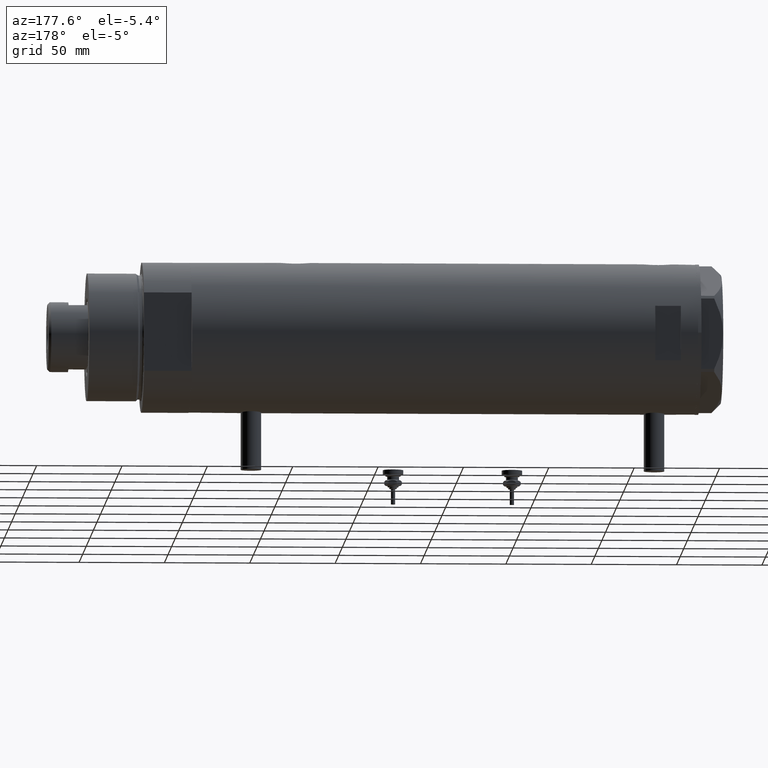
[diagram: clean part render]
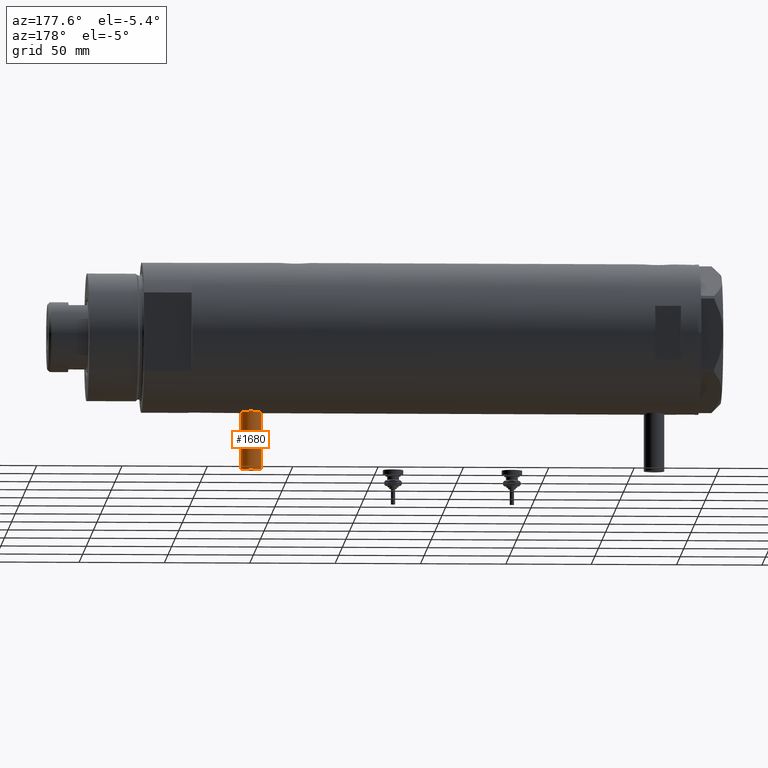
[diagram: same view with one face highlighted and labeled with its STEP entity id]
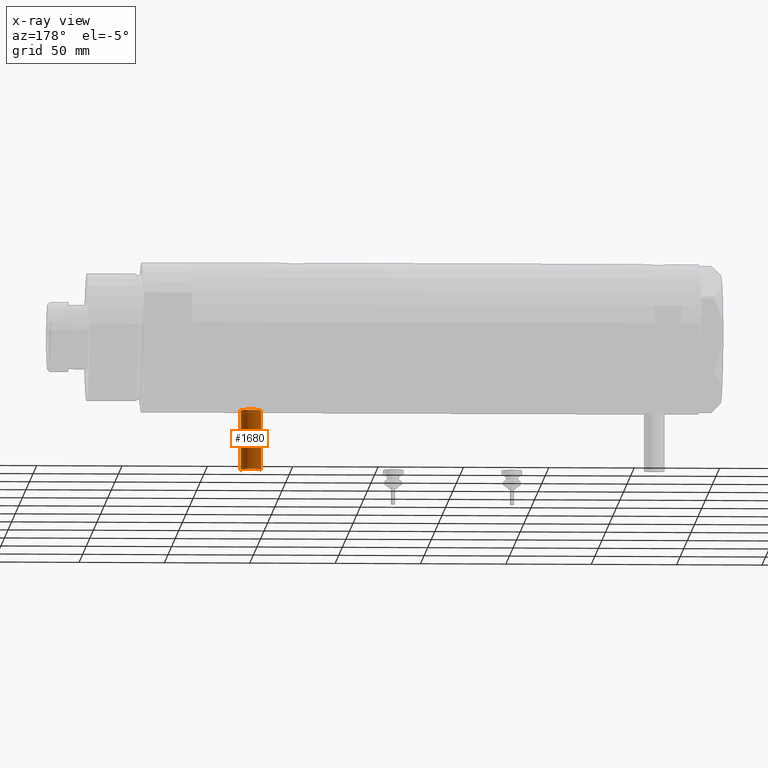
[diagram: x-ray of the same camera — body ghosted, the highlighted face saturated]
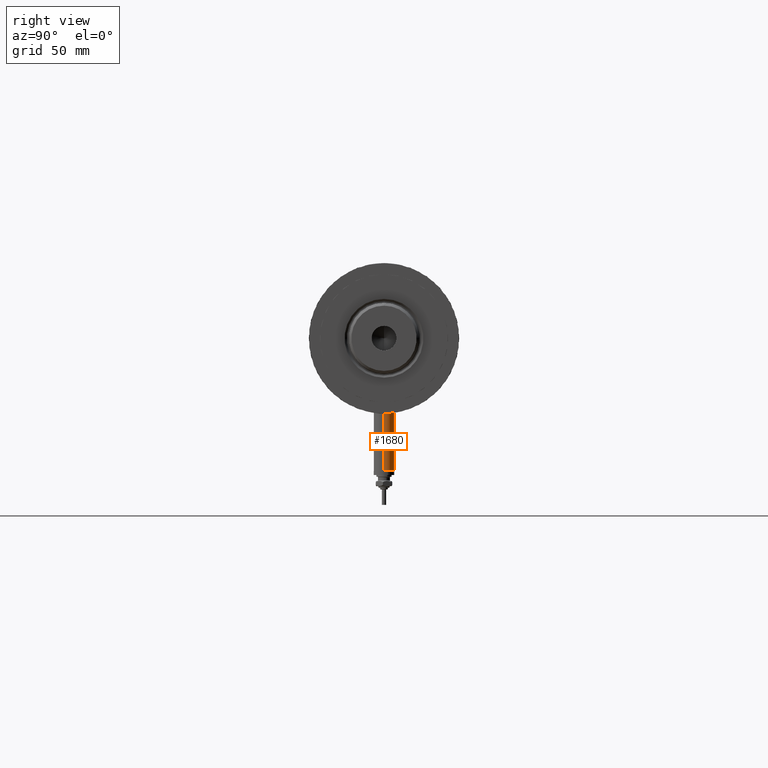
[diagram: same view with one face highlighted and labeled with its STEP entity id]
A machine part, auxiliary view. The second image highlights one B-rep face of the part: STEP entity #1680.
The next image is the same camera in x-ray: the body ghosted, the highlighted face saturated — about 0% of this face is hidden behind the body in this view.
A second angle (right view) of the same face is appended — the face is thin or edge-on in the first view.
In plain terms, the highlighted cylindrical surface (edge-blend (fillet) strip) has radius 6 mm, axis along (0, 0, 1).
Its self-contained STEP definition (entity closure, byte-faithful):
#31 = VECTOR ( 'NONE', #1369, 1000.000000000000000 ) ;
#55 = DIRECTION ( 'NONE',  ( 1.000000000000000000, -0.000000000000000000, -0.000000000000000000 ) ) ;
#273 = DIRECTION ( 'NONE',  ( 0.000000000000000000, 0.000000000000000000, 1.000000000000000000 ) ) ;
#554 = VERTEX_POINT ( 'NONE', #3076 ) ;
#592 = DIRECTION ( 'NONE',  ( 0.000000000000000000, 0.000000000000000000, 1.000000000000000000 ) ) ;
#1085 = AXIS2_PLACEMENT_3D ( 'NONE', #2565, #4421, #273 ) ;
#1157 = EDGE_CURVE ( 'NONE', #2438, #3149, #5135, .T. ) ;
#1334 = DIRECTION ( 'NONE',  ( 1.000000000000000000, -0.000000000000000000, -0.000000000000000000 ) ) ;
#1369 = DIRECTION ( 'NONE',  ( 1.000000000000000000, -0.000000000000000000, -0.000000000000000000 ) ) ;
#1680 = ADVANCED_FACE ( 'NONE', ( #4591 ), #5958, .T. ) ;
#1903 = DIRECTION ( 'NONE',  ( -1.000000000000000000, 0.000000000000000000, 0.000000000000000000 ) ) ;
#2027 = VECTOR ( 'NONE', #55, 1000.000000000000000 ) ;
#2278 = ORIENTED_EDGE ( 'NONE', *, *, #1157, .F. ) ;
#2438 = VERTEX_POINT ( 'NONE', #5849 ) ;
#2453 = EDGE_LOOP ( 'NONE', ( #2952, #4736, #5928, #2278 ) ) ;
#2565 = CARTESIAN_POINT ( 'NONE',  ( -42.79999999999999716, 0.000000000000000000, -111.9000000000000057 ) ) ;
#2952 = ORIENTED_EDGE ( 'NONE', *, *, #3424, .F. ) ;
#3002 = EDGE_CURVE ( 'NONE', #5557, #3149, #4180, .T. ) ;
#3076 = CARTESIAN_POINT ( 'NONE',  ( -77.50000000000000000, 7.347880794884119736E-16, -105.8999999999999915 ) ) ;
#3149 = VERTEX_POINT ( 'NONE', #3166 ) ;
#3166 = CARTESIAN_POINT ( 'NONE',  ( -42.79999999999999716, 0.000000000000000000, -117.9000000000000057 ) ) ;
#3242 = EDGE_CURVE ( 'NONE', #554, #5557, #4659, .T. ) ;
#3250 = CARTESIAN_POINT ( 'NONE',  ( -77.50000000000000000, 0.000000000000000000, -117.9000000000000057 ) ) ;
#3361 = CARTESIAN_POINT ( 'NONE',  ( -77.50000000000000000, 0.000000000000000000, -111.9000000000000057 ) ) ;
#3424 = EDGE_CURVE ( 'NONE', #554, #2438, #3782, .T. ) ;
#3562 = CARTESIAN_POINT ( 'NONE',  ( -77.50000000000000000, 0.000000000000000000, -111.9000000000000057 ) ) ;
#3782 = CIRCLE ( 'NONE', #5182, 6.000000000000005329 ) ;
#4180 = CIRCLE ( 'NONE', #1085, 6.000000000000005329 ) ;
#4263 = CARTESIAN_POINT ( 'NONE',  ( -42.79999999999999716, 7.347880794884119736E-16, -105.8999999999999915 ) ) ;
#4368 = AXIS2_PLACEMENT_3D ( 'NONE', #3562, #1334, #5059 ) ;
#4421 = DIRECTION ( 'NONE',  ( -1.000000000000000000, 0.000000000000000000, 0.000000000000000000 ) ) ;
#4591 = FACE_OUTER_BOUND ( 'NONE', #2453, .T. ) ;
#4659 = LINE ( 'NONE', #6005, #31 ) ;
#4736 = ORIENTED_EDGE ( 'NONE', *, *, #3242, .T. ) ;
#5059 = DIRECTION ( 'NONE',  ( 0.000000000000000000, 0.000000000000000000, -1.000000000000000000 ) ) ;
#5135 = LINE ( 'NONE', #3250, #2027 ) ;
#5182 = AXIS2_PLACEMENT_3D ( 'NONE', #3361, #1903, #592 ) ;
#5557 = VERTEX_POINT ( 'NONE', #4263 ) ;
#5849 = CARTESIAN_POINT ( 'NONE',  ( -77.50000000000000000, 0.000000000000000000, -117.9000000000000057 ) ) ;
#5928 = ORIENTED_EDGE ( 'NONE', *, *, #3002, .T. ) ;
#5958 = CYLINDRICAL_SURFACE ( 'NONE', #4368, 6.000000000000005329 ) ;
#6005 = CARTESIAN_POINT ( 'NONE',  ( -77.50000000000000000, 7.347880794884122694E-16, -105.8999999999999915 ) ) ;